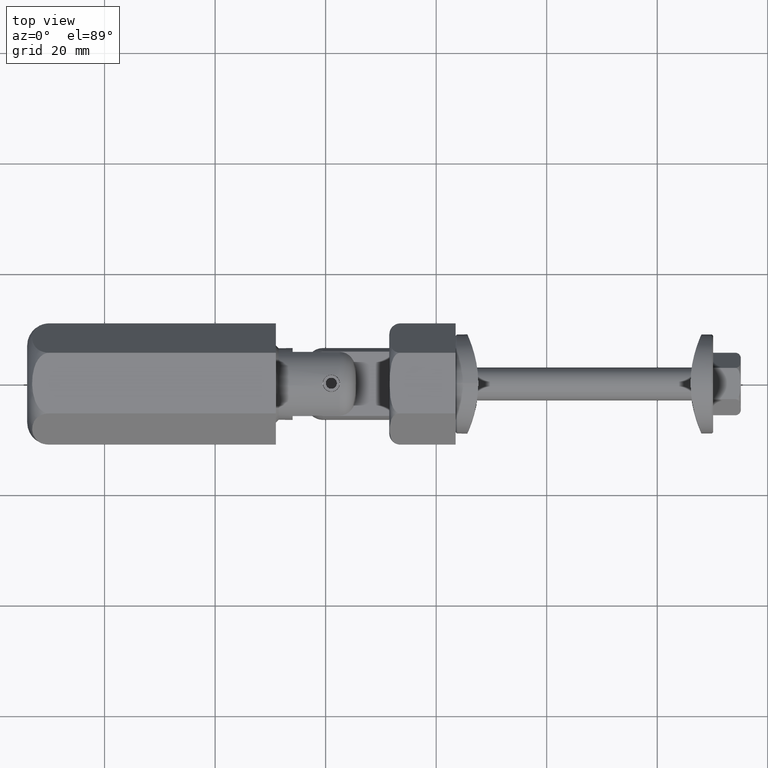
[diagram: clean part render]
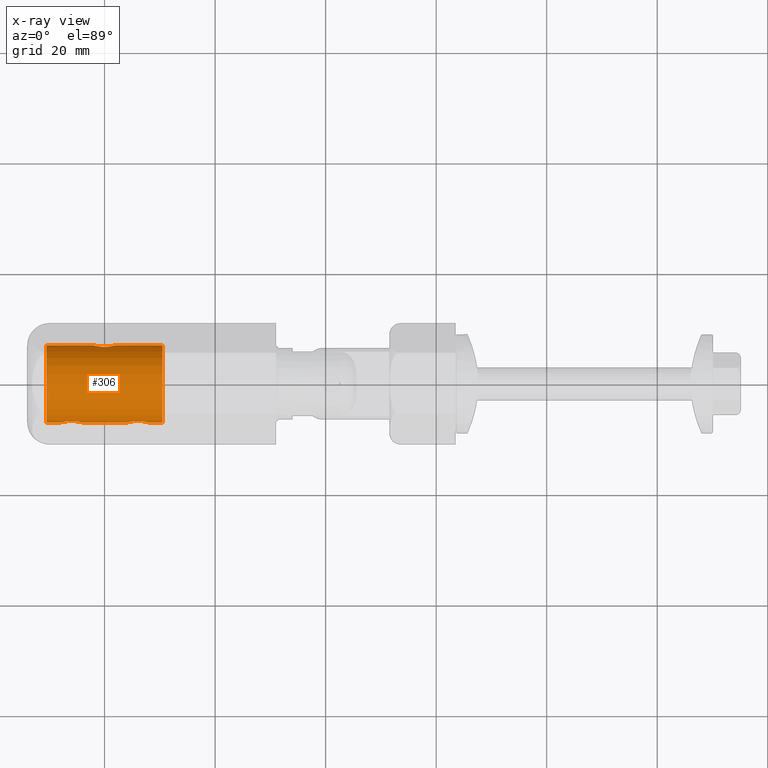
[diagram: x-ray — body ghosted, one internal face saturated and labeled with its STEP entity id]
A machine part, top view, then the same camera in x-ray: the body is ghosted and one INTERNAL B-rep face — a face not visible from any outside direction — is saturated and labeled: STEP entity #306.
In plain terms, the highlighted cylindrical surface (bore or boss wall) has radius 7 mm, axis along (-1, -0, -0).
Its self-contained STEP definition (entity closure, byte-faithful):
#122 = ORIENTED_EDGE ( 'NONE', *, *, #15807, .T. ) ;
#162 = CARTESIAN_POINT ( 'NONE',  ( -7.055779176435702738, -6.759600061314563924, 1.820430183462870222 ) ) ;
#306 = ADVANCED_FACE ( 'NONE', ( #12261, #4545, #8295, #3492, #15059 ), #7856, .T. ) ;
#335 = CARTESIAN_POINT ( 'NONE',  ( -8.032091299853432176, -6.979879823518932547, -0.5475077828909588051 ) ) ;
#395 = CARTESIAN_POINT ( 'NONE',  ( -3.968060145951508577, -6.979836189706141170, 0.5477865613094993202 ) ) ;
#406 = CARTESIAN_POINT ( 'NONE',  ( -0.5489331109168636980, 6.698732829926068000, -2.031696179806514735 ) ) ;
#452 = CARTESIAN_POINT ( 'NONE',  ( 7.820401375943274225, -6.920872669533395971, 1.055791643321307260 ) ) ;
#463 = CARTESIAN_POINT ( 'NONE',  ( -5.723071191906051070, -6.681954613611707394, -2.086212333739766223 ) ) ;
#476 = CARTESIAN_POINT ( 'NONE',  ( -1.282575759818664451, 6.798714871150503214, -1.668422950748254641 ) ) ;
#513 = CARTESIAN_POINT ( 'NONE',  ( 4.322460659764697510, -6.882502496805258829, -1.292270667219473035 ) ) ;
#537 = CARTESIAN_POINT ( 'NONE',  ( -1.678514289115097480, 6.882702840316380133, -1.291404877913023830 ) ) ;
#575 = CARTESIAN_POINT ( 'NONE',  ( 6.547049372306511295, -6.698588725198423965, -2.032168410949078741 ) ) ;
#640 = CARTESIAN_POINT ( 'NONE',  ( 8.031939854048495420, -6.979836189706142946, 0.5477865613095009856 ) ) ;
#647 = CARTESIAN_POINT ( 'NONE',  ( -3.899962183502552637, -7.000011344948850578, -0.1378475233690331647 ) ) ;
#663 = CARTESIAN_POINT ( 'NONE',  ( 2.032630711778836030, 6.980037580193776847, 0.5453942889284653095 ) ) ;
#703 = CARTESIAN_POINT ( 'NONE',  ( 8.032630711778830701, -6.980037580193777735, -0.5453942889284628670 ) ) ;
#789 = CARTESIAN_POINT ( 'NONE',  ( 2.099962026113483482, 6.999988607834431775, -0.1389973355849998538 ) ) ;
#1014 = EDGE_CURVE ( 'NONE', #17333, #17333, #8198, .T. ) ;
#1247 = ORIENTED_EDGE ( 'NONE', *, *, #1014, .T. ) ;
#1495 = CARTESIAN_POINT ( 'NONE',  ( -7.991305647251489397, -6.967980629954403149, -0.6807243282322875677 ) ) ;
#1546 = CARTESIAN_POINT ( 'NONE',  ( -6.277815526606130625, -6.681981400250368353, 2.086129300996892422 ) ) ;
#1603 = CARTESIAN_POINT ( 'NONE',  ( -6.933822544166884150, -6.741375497718142817, -1.885969007355516647 ) ) ;
#1648 = EDGE_LOOP ( 'NONE', ( #7932 ) ) ;
#1668 = CARTESIAN_POINT ( 'NONE',  ( -7.388839195446962549, -6.819827703537179708, -1.581028500071539611 ) ) ;
#1728 = CARTESIAN_POINT ( 'NONE',  ( -8.032291352580037014, -6.979938631007708949, 0.5465776492337753867 ) ) ;
#1788 = CARTESIAN_POINT ( 'NONE',  ( -4.008013125288417910, -6.968169911155557728, 0.6791295441243295761 ) ) ;
#1797 = CARTESIAN_POINT ( 'NONE',  ( 0.2741930499708331581, 6.677537183880285276, -2.100118371269697359 ) ) ;
#1840 = CARTESIAN_POINT ( 'NONE',  ( 7.991792245267925310, -6.968119259685876976, -0.6793679678655463183 ) ) ;
#1851 = CARTESIAN_POINT ( 'NONE',  ( -5.452950627693487817, -6.698588725198423077, -2.032168410949078297 ) ) ;
#1865 = CARTESIAN_POINT ( 'NONE',  ( -1.281739775913451451, 6.798550337963385815, 1.669101312122439174 ) ) ;
#1903 = CARTESIAN_POINT ( 'NONE',  ( 4.718260224086554544, -6.798550337963387591, -1.669101312122432956 ) ) ;
#1912 = CARTESIAN_POINT ( 'NONE',  ( -3.913478292464586339, -6.995920943411765514, -0.2747175000719830340 ) ) ;
#1925 = CARTESIAN_POINT ( 'NONE',  ( -1.055779176435703626, 6.759600061314561259, -1.820430183462876439 ) ) ;
#1964 = CARTESIAN_POINT ( 'NONE',  ( 10.49999999999999822, 0.000000000000000000, -7.000000000000000000 ) ) ;
#2041 = CARTESIAN_POINT ( 'NONE',  ( -4.322128940556623888, -6.882583350373733033, -1.291853353502417256 ) ) ;
#2101 = CARTESIAN_POINT ( 'NONE',  ( 7.389167496165471860, -6.819894566859789009, -1.580742788174470670 ) ) ;
#2160 = CARTESIAN_POINT ( 'NONE',  ( 6.000000000000000000, -6.677574409918622500, -2.099999999999992095 ) ) ;
#2244 = CARTESIAN_POINT ( 'NONE',  ( -5.421010862427522170E-17, 6.677574409918619835, 2.100000000000000089 ) ) ;
#2382 = EDGE_CURVE ( 'NONE', #10345, #10345, #2386, .T. ) ;
#2386 = CIRCLE ( 'NONE', #15657, 7.000000000000000000 ) ;
#2419 = EDGE_LOOP ( 'NONE', ( #11165 ) ) ;
#2859 = B_SPLINE_CURVE_WITH_KNOTS ( 'NONE', 3,
 ( #14176, #17035, #8684, #9853, #8459, #1603, #10019, #4333, #1668, #15450, #5806, #1495, #335, #11382, #9963, #10078, #11324, #1728, #11263, #14056, #7099, #16853, #8513, #162, #14116, #5743, #9908, #1546, #2964, #15749, #6124, #4573, #14416, #3376, #15687, #11626, #6056, #7392, #7593, #1788, #395, #12972, #10404, #647, #1912, #7463, #7328, #3253, #2041, #14541, #10331, #8747, #14353, #3311, #1851, #463, #17159, #17357 ),
 .UNSPECIFIED., .T., .F.,
 ( 4, 2, 2, 2, 2, 2, 2, 2, 2, 2, 2, 2, 2, 2, 2, 2, 2, 2, 2, 2, 2, 2, 2, 2, 2, 2, 2, 2, 4 ),
 ( 0.000000000000000000, 0.0004126742208551906622, 0.0008253484417103813245, 0.001238022662565571932, 0.001650696883420762649, 0.002476045325131142130, 0.002888719545986332196, 0.003301393766841521828, 0.003714067987696711461, 0.004126742208551901527, 0.004952090650262280791, 0.005364764871117470857, 0.005777439091972661790, 0.006190113312827852723, 0.006602787533683043657, 0.007428135975393424656, 0.007840810196248614722, 0.008253484417103806522, 0.008666158637958996588, 0.009078832858814186654, 0.009491507079669378455, 0.009904181300524568521, 0.01031685552137975859, 0.01072952974223495039, 0.01155487818394533225, 0.01196755240480052405, 0.01238022662565571759, 0.01279290084651090939, 0.01320557506736610119 ),
 .UNSPECIFIED. ) ;
#2964 = CARTESIAN_POINT ( 'NONE',  ( -6.138454163593429769, -6.677593114946377639, 2.099940521796465731 ) ) ;
#3008 = EDGE_CURVE ( 'NONE', #11900, #11900, #12846, .T. ) ;
#3148 = CARTESIAN_POINT ( 'NONE',  ( -0.5461640083738057427, 6.698523130148839932, 2.032383107415891565 ) ) ;
#3201 = CARTESIAN_POINT ( 'NONE',  ( -1.388839195446964991, 6.819827703537177044, 1.581028500071543608 ) ) ;
#3242 = CARTESIAN_POINT ( 'NONE',  ( 7.054460413041963918, -6.759387153196886544, -1.821229746319744214 ) ) ;
#3253 = CARTESIAN_POINT ( 'NONE',  ( -4.165969375666293217, -6.924122110894418647, -1.058980833297288315 ) ) ;
#3302 = CARTESIAN_POINT ( 'NONE',  ( 5.453835991626197810, -6.698523130148844373, -2.032383107415884904 ) ) ;
#3308 = ORIENTED_EDGE ( 'NONE', *, *, #6885, .T. ) ;
#3311 = CARTESIAN_POINT ( 'NONE',  ( -5.318888449927635875, -6.711044336603226412, -1.991205123072984806 ) ) ;
#3323 = CARTESIAN_POINT ( 'NONE',  ( -0.9328674104100991293, 6.741251321833790833, -1.886406131919161400 ) ) ;
#3376 = CARTESIAN_POINT ( 'NONE',  ( -4.718171532959313907, -6.798570512688359990, 1.669013589149066945 ) ) ;
#3411 = AXIS2_PLACEMENT_3D ( 'NONE', #16989, #7174, #14137 ) ;
#3432 = CARTESIAN_POINT ( 'NONE',  ( 8.099962026113477265, -6.999988607834436216, 0.1389973355849999093 ) ) ;
#3492 = FACE_OUTER_BOUND ( 'NONE', #2419, .T. ) ;
#3638 = CARTESIAN_POINT ( 'NONE',  ( 2.086521707535420767, 6.995920943411766402, 0.2747175000719844773 ) ) ;
#4333 = CARTESIAN_POINT ( 'NONE',  ( -7.281739775913448121, -6.798550337963386703, -1.669101312122433400 ) ) ;
#4525 = CARTESIAN_POINT ( 'NONE',  ( -1.833738873039429507, 6.924046632502711240, 1.059309639716422557 ) ) ;
#4545 = FACE_BOUND ( 'NONE', #11602, .T. ) ;
#4573 = CARTESIAN_POINT ( 'NONE',  ( -5.068269595067096844, -6.741092463548767455, 1.886972006611054908 ) ) ;
#4626 = CARTESIAN_POINT ( 'NONE',  ( 5.861545836406570231, -6.677593114946377639, 2.099940521796466619 ) ) ;
#4691 = CARTESIAN_POINT ( 'NONE',  ( 5.320050044645565634, -6.710920279591074511, -1.991625391210247731 ) ) ;
#4711 = CARTESIAN_POINT ( 'NONE',  ( -0.6798676641419484357, 6.710920042696562504, -1.991619858105865948 ) ) ;
#4755 = CARTESIAN_POINT ( 'NONE',  ( 3.967908700146568268, -6.979879823518936099, -0.5475077828909575839 ) ) ;
#4826 = CARTESIAN_POINT ( 'NONE',  ( 8.100037816497447807, -7.000011344948851466, -0.1378475233690319157 ) ) ;
#4866 = EDGE_LOOP ( 'NONE', ( #3308 ) ) ;
#4884 = CARTESIAN_POINT ( 'NONE',  ( 0.000000000000000000, 6.677574409918619835, 2.100000000000000089 ) ) ;
#4889 = CARTESIAN_POINT ( 'NONE',  ( 5.723292098759246826, -6.681952129707695143, -2.086218818039787148 ) ) ;
#4915 = CARTESIAN_POINT ( 'NONE',  ( 1.282117231908432187, 6.798621369107634926, 1.668813936661602604 ) ) ;
#5048 = CARTESIAN_POINT ( 'NONE',  ( 0.9343148764650356375, 6.741449950314554407, 1.885700532271822327 ) ) ;
#5098 = CARTESIAN_POINT ( 'NONE',  ( 1.991792245267931971, 6.968119259685876976, 0.6793679678655472065 ) ) ;
#5191 = CARTESIAN_POINT ( 'NONE',  ( -10.49999999999999822, 0.000000000000000000, -7.000000000000000000 ) ) ;
#5289 = CARTESIAN_POINT ( 'NONE',  ( 11.00000000000000000, 0.000000000000000000, 0.000000000000000000 ) ) ;
#5743 = CARTESIAN_POINT ( 'NONE',  ( -6.679867664141948325, -6.710920042696562504, 1.991619858105859509 ) ) ;
#5806 = CARTESIAN_POINT ( 'NONE',  ( -7.833738873039423289, -6.924046632502709464, -1.059309639716419449 ) ) ;
#5999 = CARTESIAN_POINT ( 'NONE',  ( -1.991305647251499389, 6.967980629954404037, 0.6807243282322894551 ) ) ;
#6023 = DIRECTION ( 'NONE',  ( -1.000000000000000000, 0.000000000000000000, 0.000000000000000000 ) ) ;
#6045 = CARTESIAN_POINT ( 'NONE',  ( 6.276928808093952483, -6.681954613611711835, -2.086212333739765334 ) ) ;
#6056 = CARTESIAN_POINT ( 'NONE',  ( -4.331256927589153705, -6.882537379490016427, 1.282128590245168898 ) ) ;
#6114 = CARTESIAN_POINT ( 'NONE',  ( 8.085965238734301508, -6.995754758556704367, 0.2785654501442211828 ) ) ;
#6124 = CARTESIAN_POINT ( 'NONE',  ( -5.448022218047483989, -6.695633180687199371, 2.044617356150433274 ) ) ;
#6138 = CARTESIAN_POINT ( 'NONE',  ( 1.387073078795818981, 6.819458443178254115, -1.582658246544897951 ) ) ;
#6180 = CARTESIAN_POINT ( 'NONE',  ( 4.612277256389651470, -6.819591003532936568, 1.582090320187762300 ) ) ;
#6243 = CARTESIAN_POINT ( 'NONE',  ( 7.387073078795813430, -6.819458443178253226, 1.582658246544896397 ) ) ;
#6302 = CARTESIAN_POINT ( 'NONE',  ( 3.913625261481289197, -6.995876417530238811, -0.2760439706589809528 ) ) ;
#6324 = CARTESIAN_POINT ( 'NONE',  ( 2.031939854048501193, 6.979836189706141170, -0.5477865613095009856 ) ) ;
#6885 = EDGE_CURVE ( 'NONE', #7068, #7068, #2859, .T. ) ;
#7068 = VERTEX_POINT ( 'NONE', #10642 ) ;
#7099 = CARTESIAN_POINT ( 'NONE',  ( -7.678514289115095259, -6.882702840316382797, 1.291404877913020499 ) ) ;
#7174 = DIRECTION ( 'NONE',  ( 1.000000000000000000, -0.000000000000000000, -0.000000000000000000 ) ) ;
#7328 = CARTESIAN_POINT ( 'NONE',  ( -4.008207754732074690, -6.968119259685877864, -0.6793679678655456522 ) ) ;
#7340 = CARTESIAN_POINT ( 'NONE',  ( -0.1396060933751220035, 6.677574409918618059, 2.100000000000000089 ) ) ;
#7392 = CARTESIAN_POINT ( 'NONE',  ( -4.179598624056727552, -6.920872669533395083, 1.055791643321302820 ) ) ;
#7407 = CARTESIAN_POINT ( 'NONE',  ( -1.054102473945782270, 6.759331466220757534, 1.821434604291050308 ) ) ;
#7455 = B_SPLINE_CURVE_WITH_KNOTS ( 'NONE', 3,
 ( #15795, #7582, #4889, #3302, #4691, #10324, #13210, #1903, #15983, #513, #13270, #14661, #4755, #6302, #10265, #15916, #11616, #16044, #11746, #13149, #14535, #6180, #17349, #17148, #8802, #11683, #13079, #13020, #4626, #17412, #10392, #10197, #7646, #14469, #6243, #8991, #9059, #452, #15856, #11812, #640, #6114, #3432, #4826, #7520, #703, #1840, #10460, #17282, #2101, #11882, #3242, #8926, #14407, #575, #6045, #7773, #2160 ),
 .UNSPECIFIED., .T., .F.,
 ( 4, 2, 2, 2, 2, 2, 2, 2, 2, 2, 2, 2, 2, 2, 2, 2, 2, 2, 2, 2, 2, 2, 2, 2, 2, 2, 2, 2, 4 ),
 ( 0.000000000000000000, 0.0004126742208551886022, 0.0008253484417103772045, 0.001238022662565565861, 0.001650696883420754409, 0.002476045325131133023, 0.002888719545986322655, 0.003301393766841512287, 0.003714067987696701486, 0.004126742208551891118, 0.004952090650262271250, 0.005364764871117462183, 0.005777439091972653117, 0.006190113312827844917, 0.006602787533683036718, 0.007428135975393417717, 0.007840810196248609518, 0.008253484417103799584, 0.008666158637958993119, 0.009078832858814184920, 0.009491507079669374985, 0.009904181300524566786, 0.01031685552137975859, 0.01072952974223495039, 0.01155487818394533052, 0.01196755240480052405, 0.01238022662565571586, 0.01279290084651090592, 0.01320557506736609946 ),
 .UNSPECIFIED. ) ;
#7463 = CARTESIAN_POINT ( 'NONE',  ( -3.967369288221169299, -6.980037580193778624, -0.5453942889284638662 ) ) ;
#7476 = CARTESIAN_POINT ( 'NONE',  ( -2.100089391378389347, 7.000026817408323332, -0.1365020080210981035 ) ) ;
#7520 = CARTESIAN_POINT ( 'NONE',  ( 8.086521707535418102, -6.995920943411771731, -0.2747175000719819793 ) ) ;
#7582 = CARTESIAN_POINT ( 'NONE',  ( 5.860393906624878468, -6.677574409918621612, -2.099999999999991207 ) ) ;
#7593 = CARTESIAN_POINT ( 'NONE',  ( -4.114608107933059422, -6.938449595434287076, 0.9351609808230708643 ) ) ;
#7608 = CARTESIAN_POINT ( 'NONE',  ( -2.032091299853440169, 6.979879823518931659, 0.5475077828909599154 ) ) ;
#7646 = CARTESIAN_POINT ( 'NONE',  ( 7.054614965601921917, -6.759414880206080056, 1.821119944981273830 ) ) ;
#7734 = CARTESIAN_POINT ( 'NONE',  ( 2.100037816497455356, 7.000011344948850578, 0.1378475233690338031 ) ) ;
#7773 = CARTESIAN_POINT ( 'NONE',  ( 6.139606093375124196, -6.677574409918623388, -2.099999999999992983 ) ) ;
#7851 = CARTESIAN_POINT ( 'NONE',  ( 1.834030624333711668, 6.924122110894418647, 1.058980833297288759 ) ) ;
#7856 = CYLINDRICAL_SURFACE ( 'NONE', #7962, 7.000000000000000000 ) ;
#7932 = ORIENTED_EDGE ( 'NONE', *, *, #2382, .T. ) ;
#7962 = AXIS2_PLACEMENT_3D ( 'NONE', #5289, #12922, #15692 ) ;
#8198 = B_SPLINE_CURVE_WITH_KNOTS ( 'NONE', 3,
 ( #11574, #7340, #11510, #3148, #10218, #12929, #7407, #1865, #3201, #11638, #4525, #5999, #7608, #14308, #15815, #7476, #13167, #17108, #8886, #17371, #537, #10089, #476, #1925, #3323, #4711, #406, #10156, #15758, #1797, #14366, #17173, #10346, #14492, #6138, #15875, #17302, #8947, #14555, #9015, #6324, #10553, #789, #7734, #3638, #663, #5098, #7851, #13412, #16248, #4915, #17436, #5048, #9078, #12030, #10609, #14683, #2244 ),
 .UNSPECIFIED., .T., .F.,
 ( 4, 2, 2, 2, 2, 2, 2, 2, 2, 2, 2, 2, 2, 2, 2, 2, 2, 2, 2, 2, 2, 2, 2, 2, 2, 2, 2, 2, 4 ),
 ( 0.000000000000000000, 0.0004126742208551922885, 0.0008253484417103845771, 0.001238022662565576920, 0.001650696883420769154, 0.002476045325131153840, 0.002888719545986345640, 0.003301393766841537875, 0.003714067987696729242, 0.004126742208551920608, 0.004952090650262305077, 0.005364764871117496878, 0.005777439091972688678, 0.006190113312827882214, 0.006602787533683074014, 0.007428135975393458483, 0.007840810196248651151, 0.008253484417103842952, 0.008666158637959036487, 0.009078832858814228288, 0.009491507079669420088, 0.009904181300524611889, 0.01031685552137980542, 0.01072952974223499722, 0.01155487818394537909, 0.01196755240480057263, 0.01238022662565576443, 0.01279290084651095796, 0.01320557506736614803 ),
 .UNSPECIFIED. ) ;
#8295 = FACE_BOUND ( 'NONE', #16619, .T. ) ;
#8459 = CARTESIAN_POINT ( 'NONE',  ( -6.679949955354436142, -6.710920279591075399, -1.991625391210248619 ) ) ;
#8513 = CARTESIAN_POINT ( 'NONE',  ( -7.282575759818663563, -6.798714871150506767, 1.668422950748249090 ) ) ;
#8684 = CARTESIAN_POINT ( 'NONE',  ( -6.276707901240754950, -6.681952129707695143, -2.086218818039788037 ) ) ;
#8747 = CARTESIAN_POINT ( 'NONE',  ( -4.945539586958037859, -6.759387153196886544, -1.821229746319744658 ) ) ;
#8802 = CARTESIAN_POINT ( 'NONE',  ( 5.067132589589898650, -6.741251321833793497, 1.886406131919154960 ) ) ;
#8886 = CARTESIAN_POINT ( 'NONE',  ( -1.992370873320147728, 6.968281583516250599, -0.6779150144627420493 ) ) ;
#8926 = CARTESIAN_POINT ( 'NONE',  ( 6.934314876465031752, -6.741449950314556183, -1.885700532271814778 ) ) ;
#8947 = CARTESIAN_POINT ( 'NONE',  ( 1.820401375943279332, 6.920872669533393307, -1.055791643321305262 ) ) ;
#8991 = CARTESIAN_POINT ( 'NONE',  ( 7.580987759049617303, -6.861527820141792411, 1.388976802186387971 ) ) ;
#9015 = CARTESIAN_POINT ( 'NONE',  ( 1.991986874711585198, 6.968169911155557728, -0.6791295441243324627 ) ) ;
#9059 = CARTESIAN_POINT ( 'NONE',  ( 7.668743072410847184, -6.882537379490017315, 1.282128590245171562 ) ) ;
#9078 = CARTESIAN_POINT ( 'NONE',  ( 0.6811115500723706750, 6.711044336603225524, 1.991205123072990357 ) ) ;
#9853 = CARTESIAN_POINT ( 'NONE',  ( -6.546164008373803078, -6.698523130148840821, -2.032383107415884460 ) ) ;
#9908 = CARTESIAN_POINT ( 'NONE',  ( -6.548933110916860478, -6.698732829926071553, 2.031696179806508518 ) ) ;
#9963 = CARTESIAN_POINT ( 'NONE',  ( -8.099909716981475327, -6.999972915099663240, -0.1392387535875164450 ) ) ;
#10019 = CARTESIAN_POINT ( 'NONE',  ( -7.054102473945778051, -6.759331466220759310, -1.821434604291044090 ) ) ;
#10078 = CARTESIAN_POINT ( 'NONE',  ( -8.100089391378386239, -7.000026817408324220, 0.1365020080210969655 ) ) ;
#10089 = CARTESIAN_POINT ( 'NONE',  ( -1.387722743610353415, 6.819591003532936568, -1.582090320187766519 ) ) ;
#10112 = CARTESIAN_POINT ( 'NONE',  ( 10.49999999999999822, 0.000000000000000000, 0.000000000000000000 ) ) ;
#10156 = CARTESIAN_POINT ( 'NONE',  ( -0.2778155266061311801, 6.681981400250366576, -2.086129300996898195 ) ) ;
#10197 = CARTESIAN_POINT ( 'NONE',  ( 6.931730404932903156, -6.741092463548766567, 1.886972006611055352 ) ) ;
#10218 = CARTESIAN_POINT ( 'NONE',  ( -0.6799499553544379182, 6.710920279591073623, 1.991625391210255502 ) ) ;
#10265 = CARTESIAN_POINT ( 'NONE',  ( 3.900090283018523785, -6.999972915099665904, -0.1392387535875160842 ) ) ;
#10324 = CARTESIAN_POINT ( 'NONE',  ( 5.066177455833113186, -6.741375497718145482, -1.885969007355515537 ) ) ;
#10331 = CARTESIAN_POINT ( 'NONE',  ( -4.717882768091575585, -6.798621369107635815, -1.668813936661598829 ) ) ;
#10345 = VERTEX_POINT ( 'NONE', #1964 ) ;
#10346 = CARTESIAN_POINT ( 'NONE',  ( 1.054614965601925469, 6.759414880206073839, -1.821119944981276051 ) ) ;
#10392 = CARTESIAN_POINT ( 'NONE',  ( 6.551977781952515123, -6.695633180687197594, 2.044617356150431942 ) ) ;
#10404 = CARTESIAN_POINT ( 'NONE',  ( -3.900037973886521847, -6.999988607834431775, 0.1389973355850002701 ) ) ;
#10460 = CARTESIAN_POINT ( 'NONE',  ( 7.834030624333706783, -6.924122110894421311, -1.058980833297286539 ) ) ;
#10553 = CARTESIAN_POINT ( 'NONE',  ( 2.085965238734308169, 6.995754758556705255, -0.2785654501442186848 ) ) ;
#10609 = CARTESIAN_POINT ( 'NONE',  ( 0.2769288080939470986, 6.681954613611709171, 2.086212333739772884 ) ) ;
#10642 = CARTESIAN_POINT ( 'NONE',  ( -6.000000000000000000, -6.677574409918621612, -2.099999999999993427 ) ) ;
#11165 = ORIENTED_EDGE ( 'NONE', *, *, #3008, .T. ) ;
#11263 = CARTESIAN_POINT ( 'NONE',  ( -7.992370873320142621, -6.968281583516251487, 0.6779150144627383856 ) ) ;
#11324 = CARTESIAN_POINT ( 'NONE',  ( -8.086257186381498485, -6.995841922069899965, 0.2765614229878900487 ) ) ;
#11382 = CARTESIAN_POINT ( 'NONE',  ( -8.086374738518708583, -6.995876417530237035, -0.2760439706589821185 ) ) ;
#11510 = CARTESIAN_POINT ( 'NONE',  ( -0.2767079012407565042, 6.681952129707694255, 2.086218818039794254 ) ) ;
#11574 = CARTESIAN_POINT ( 'NONE',  ( -5.421010862427522170E-17, 6.677574409918619835, 2.100000000000000089 ) ) ;
#11602 = EDGE_LOOP ( 'NONE', ( #122 ) ) ;
#11616 = CARTESIAN_POINT ( 'NONE',  ( 3.913742813618505512, -6.995841922069899077, 0.2765614229878917141 ) ) ;
#11626 = CARTESIAN_POINT ( 'NONE',  ( -4.419012240950379145, -6.861527820141795964, 1.388976802186384640 ) ) ;
#11638 = CARTESIAN_POINT ( 'NONE',  ( -1.677539340235310705, 6.882502496805260606, 1.292270667219477476 ) ) ;
#11683 = CARTESIAN_POINT ( 'NONE',  ( 5.320132335858051675, -6.710920042696560728, 1.991619858105860619 ) ) ;
#11746 = CARTESIAN_POINT ( 'NONE',  ( 4.007629126679858267, -6.968281583516251487, 0.6779150144627406060 ) ) ;
#11812 = CARTESIAN_POINT ( 'NONE',  ( 7.991986874711580313, -6.968169911155554175, 0.6791295441243322406 ) ) ;
#11882 = CARTESIAN_POINT ( 'NONE',  ( 7.282117231908429744, -6.798621369107635815, -1.668813936661598163 ) ) ;
#11900 = VERTEX_POINT ( 'NONE', #5191 ) ;
#12030 = CARTESIAN_POINT ( 'NONE',  ( 0.5470493723065145142, 6.698588725198425742, 2.032168410949085846 ) ) ;
#12068 = CARTESIAN_POINT ( 'NONE',  ( 6.000000000000000000, -6.677574409918622500, -2.099999999999992095 ) ) ;
#12261 = FACE_BOUND ( 'NONE', #4866, .T. ) ;
#12600 = DIRECTION ( 'NONE',  ( 0.000000000000000000, 0.000000000000000000, -1.000000000000000000 ) ) ;
#12846 = CIRCLE ( 'NONE', #3411, 7.000000000000000000 ) ;
#12922 = DIRECTION ( 'NONE',  ( -1.000000000000000000, -0.000000000000000000, -0.000000000000000000 ) ) ;
#12929 = CARTESIAN_POINT ( 'NONE',  ( -0.9338225441668903670, 6.741375497718142817, 1.885969007355523752 ) ) ;
#12972 = CARTESIAN_POINT ( 'NONE',  ( -3.914034761265700268, -6.995754758556705255, 0.2785654501442183517 ) ) ;
#13020 = CARTESIAN_POINT ( 'NONE',  ( 5.722184473393866710, -6.681981400250369241, 2.086129300996894198 ) ) ;
#13079 = CARTESIAN_POINT ( 'NONE',  ( 5.451066889083135969, -6.698732829926070664, 2.031696179806510294 ) ) ;
#13149 = CARTESIAN_POINT ( 'NONE',  ( 4.166720277408425765, -6.923910792502629086, 1.060908720620473256 ) ) ;
#13167 = CARTESIAN_POINT ( 'NONE',  ( -2.086257186381502038, 6.995841922069899965, -0.2765614229878923802 ) ) ;
#13210 = CARTESIAN_POINT ( 'NONE',  ( 4.945897526054222837, -6.759331466220758422, -1.821434604291042980 ) ) ;
#13270 = CARTESIAN_POINT ( 'NONE',  ( 4.166261126960574934, -6.924046632502710352, -1.059309639716417228 ) ) ;
#13412 = CARTESIAN_POINT ( 'NONE',  ( 1.677871059443381663, 6.882583350373726816, 1.291853353502421697 ) ) ;
#14056 = CARTESIAN_POINT ( 'NONE',  ( -7.833279722591575123, -6.923910792502629974, 1.060908720620472367 ) ) ;
#14116 = CARTESIAN_POINT ( 'NONE',  ( -6.932867410410098685, -6.741251321833791721, 1.886406131919154738 ) ) ;
#14137 = DIRECTION ( 'NONE',  ( 0.000000000000000000, 0.000000000000000000, -1.000000000000000000 ) ) ;
#14176 = CARTESIAN_POINT ( 'NONE',  ( -6.000000000000000888, -6.677574409918621612, -2.099999999999993427 ) ) ;
#14308 = CARTESIAN_POINT ( 'NONE',  ( -2.086374738518715688, 6.995876417530237035, 0.2760439706589819520 ) ) ;
#14353 = CARTESIAN_POINT ( 'NONE',  ( -5.065685123534970913, -6.741449950314553519, -1.885700532271817664 ) ) ;
#14366 = CARTESIAN_POINT ( 'NONE',  ( 0.5519777819525226725, 6.695633180687202035, -2.044617356150437271 ) ) ;
#14407 = CARTESIAN_POINT ( 'NONE',  ( 6.681111550072365013, -6.711044336603223748, -1.991205123072982586 ) ) ;
#14416 = CARTESIAN_POINT ( 'NONE',  ( -4.945385034398080748, -6.759414880206078280, 1.821119944981272054 ) ) ;
#14469 = CARTESIAN_POINT ( 'NONE',  ( 7.281828467040685204, -6.798570512688357326, 1.669013589149068055 ) ) ;
#14492 = CARTESIAN_POINT ( 'NONE',  ( 1.281828467040692754, 6.798570512688357326, -1.669013589149070498 ) ) ;
#14535 = CARTESIAN_POINT ( 'NONE',  ( 4.321485710884906517, -6.882702840316381021, 1.291404877913019167 ) ) ;
#14541 = CARTESIAN_POINT ( 'NONE',  ( -4.610832503834529028, -6.819894566859790785, -1.580742788174470892 ) ) ;
#14555 = CARTESIAN_POINT ( 'NONE',  ( 1.885391892066947239, 6.938449595434285300, -0.9351609808230747500 ) ) ;
#14661 = CARTESIAN_POINT ( 'NONE',  ( 4.008694352748508827, -6.967980629954405813, -0.6807243282322863465 ) ) ;
#14683 = CARTESIAN_POINT ( 'NONE',  ( 0.1396060933751213928, 6.677574409918622500, 2.100000000000000533 ) ) ;
#15059 = FACE_OUTER_BOUND ( 'NONE', #1648, .T. ) ;
#15450 = CARTESIAN_POINT ( 'NONE',  ( -7.677539340235308707, -6.882502496805263270, -1.292270667219473035 ) ) ;
#15657 = AXIS2_PLACEMENT_3D ( 'NONE', #10112, #6023, #12600 ) ;
#15687 = CARTESIAN_POINT ( 'NONE',  ( -4.612926921204187458, -6.819458443178253226, 1.582658246544895064 ) ) ;
#15692 = DIRECTION ( 'NONE',  ( 0.000000000000000000, 0.000000000000000000, 1.000000000000000000 ) ) ;
#15749 = CARTESIAN_POINT ( 'NONE',  ( -5.725806950029170395, -6.677537183880286165, 2.100118371269690698 ) ) ;
#15758 = CARTESIAN_POINT ( 'NONE',  ( -0.1384541635934272708, 6.677593114946374087, -2.099940521796471948 ) ) ;
#15795 = CARTESIAN_POINT ( 'NONE',  ( 6.000000000000000000, -6.677574409918622500, -2.099999999999992095 ) ) ;
#15807 = EDGE_CURVE ( 'NONE', #17962, #17962, #7455, .T. ) ;
#15815 = CARTESIAN_POINT ( 'NONE',  ( -2.099909716981481544, 6.999972915099667681, 0.1392387535875159454 ) ) ;
#15856 = CARTESIAN_POINT ( 'NONE',  ( 7.885391892066941466, -6.938449595434287964, 0.9351609808230740839 ) ) ;
#15875 = CARTESIAN_POINT ( 'NONE',  ( 1.580987759049625296, 6.861527820141791523, -1.388976802186388859 ) ) ;
#15916 = CARTESIAN_POINT ( 'NONE',  ( 3.899910608621614649, -7.000026817408324220, 0.1365020080210979092 ) ) ;
#15983 = CARTESIAN_POINT ( 'NONE',  ( 4.611160804553041004, -6.819827703537176156, -1.581028500071537835 ) ) ;
#16044 = CARTESIAN_POINT ( 'NONE',  ( 3.967708647419962542, -6.979938631007711614, 0.5465776492337757198 ) ) ;
#16248 = CARTESIAN_POINT ( 'NONE',  ( 1.389167496165476967, 6.819894566859787233, 1.580742788174476221 ) ) ;
#16619 = EDGE_LOOP ( 'NONE', ( #1247 ) ) ;
#16853 = CARTESIAN_POINT ( 'NONE',  ( -7.387722743610349418, -6.819591003532936568, 1.582090320187760746 ) ) ;
#16989 = CARTESIAN_POINT ( 'NONE',  ( -10.49999999999999822, 0.000000000000000000, 0.000000000000000000 ) ) ;
#17035 = CARTESIAN_POINT ( 'NONE',  ( -6.139606093375122420, -6.677574409918621612, -2.099999999999992983 ) ) ;
#17108 = CARTESIAN_POINT ( 'NONE',  ( -2.032291352580044119, 6.979938631007711614, -0.5465776492337782733 ) ) ;
#17148 = CARTESIAN_POINT ( 'NONE',  ( 4.944220823564299039, -6.759600061314564812, 1.820430183462871776 ) ) ;
#17159 = CARTESIAN_POINT ( 'NONE',  ( -5.860393906624878468, -6.677574409918621612, -2.099999999999994316 ) ) ;
#17173 = CARTESIAN_POINT ( 'NONE',  ( 0.9317304049329089288, 6.741092463548765679, -1.886972006611058683 ) ) ;
#17282 = CARTESIAN_POINT ( 'NONE',  ( 7.677871059443378776, -6.882583350373733921, -1.291853353502417034 ) ) ;
#17302 = CARTESIAN_POINT ( 'NONE',  ( 1.668743072410852513, 6.882537379490019092, -1.282128590245172228 ) ) ;
#17333 = VERTEX_POINT ( 'NONE', #4884 ) ;
#17349 = CARTESIAN_POINT ( 'NONE',  ( 4.717424240181339101, -6.798714871150505878, 1.668422950748250866 ) ) ;
#17357 = CARTESIAN_POINT ( 'NONE',  ( -6.000000000000000888, -6.677574409918621612, -2.099999999999993427 ) ) ;
#17371 = CARTESIAN_POINT ( 'NONE',  ( -1.833279722591579119, 6.923910792502629086, -1.060908720620477252 ) ) ;
#17412 = CARTESIAN_POINT ( 'NONE',  ( 6.274193049970834046, -6.677537183880287053, 2.100118371269692474 ) ) ;
#17436 = CARTESIAN_POINT ( 'NONE',  ( 1.054460413041965250, 6.759387153196884768, 1.821229746319750875 ) ) ;
#17962 = VERTEX_POINT ( 'NONE', #12068 ) ;